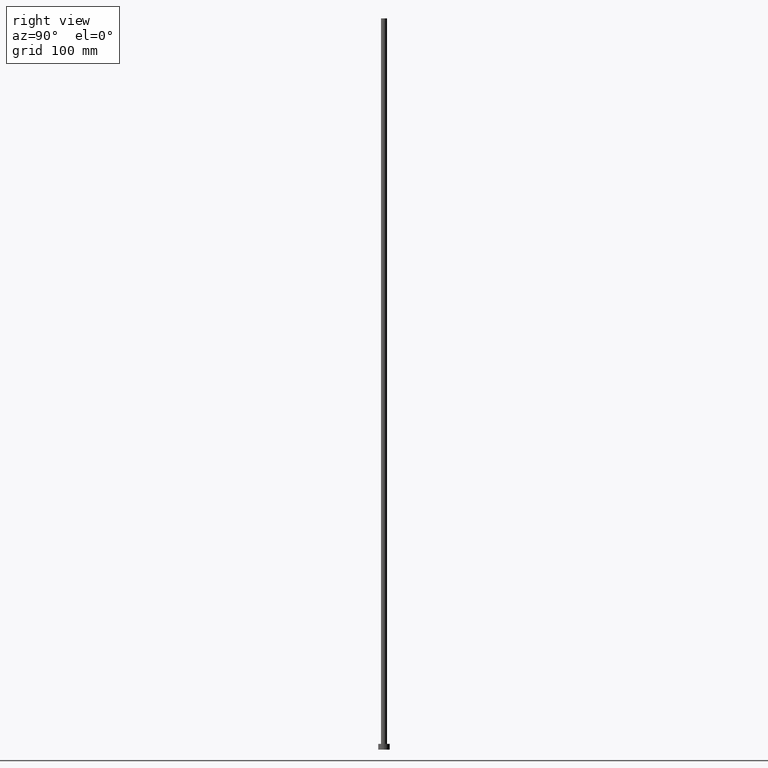
[diagram: clean part render]
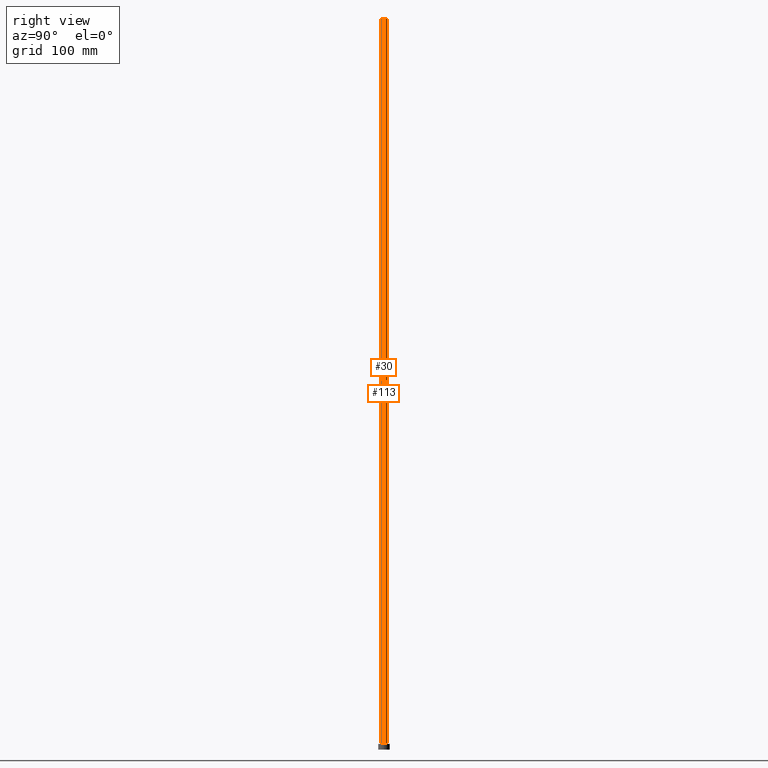
[diagram: same view with one multi-face feature highlighted, each face labeled with its STEP entity id]
A machine part, right view. The highlighted faces form ONE feature: a constant-radius fillet chain: 2 tangent blend faces with common blend radius 2.6 mm. The faces share edges in the B-rep.
Their STEP definitions:
[1] entity #30 (Cylinder):
#2 = LINE ( 'NONE', #75, #248 ) ;
#11 = CIRCLE ( 'NONE', #57, 2.600000000000000089 ) ;
#13 = DIRECTION ( 'NONE',  ( -0.000000000000000000, -0.000000000000000000, -1.000000000000000000 ) ) ;
#23 = CARTESIAN_POINT ( 'NONE',  ( 2.600000000000000089, 3.184081677783118191E-16, 630.0000000000000000 ) ) ;
#25 = LINE ( 'NONE', #47, #193 ) ;
#26 = VERTEX_POINT ( 'NONE', #139 ) ;
#30 = ADVANCED_FACE ( 'NONE', ( #214 ), #197, .T. ) ;
#35 = DIRECTION ( 'NONE',  ( -1.000000000000000000, 0.000000000000000000, 0.000000000000000000 ) ) ;
#36 = DIRECTION ( 'NONE',  ( -0.000000000000000000, -0.000000000000000000, -1.000000000000000000 ) ) ;
#38 = EDGE_CURVE ( 'NONE', #217, #213, #157, .T. ) ;
#43 = CARTESIAN_POINT ( 'NONE',  ( 0.000000000000000000, 0.000000000000000000, 5.000000000000000000 ) ) ;
#47 = CARTESIAN_POINT ( 'NONE',  ( -2.600000000000000089, 0.000000000000000000, 630.0000000000000000 ) ) ;
#57 = AXIS2_PLACEMENT_3D ( 'NONE', #43, #108, #236 ) ;
#58 = CARTESIAN_POINT ( 'NONE',  ( 0.000000000000000000, 0.000000000000000000, 630.0000000000000000 ) ) ;
#75 = CARTESIAN_POINT ( 'NONE',  ( 2.600000000000000089, 3.184081677783118191E-16, 630.0000000000000000 ) ) ;
#76 = AXIS2_PLACEMENT_3D ( 'NONE', #58, #160, #118 ) ;
#88 = DIRECTION ( 'NONE',  ( -0.000000000000000000, -0.000000000000000000, -1.000000000000000000 ) ) ;
#93 = EDGE_LOOP ( 'NONE', ( #216, #119, #173, #114 ) ) ;
#108 = DIRECTION ( 'NONE',  ( 0.000000000000000000, 0.000000000000000000, 1.000000000000000000 ) ) ;
#114 = ORIENTED_EDGE ( 'NONE', *, *, #240, .T. ) ;
#118 = DIRECTION ( 'NONE',  ( 1.000000000000000000, 0.000000000000000000, 0.000000000000000000 ) ) ;
#119 = ORIENTED_EDGE ( 'NONE', *, *, #38, .F. ) ;
#137 = EDGE_CURVE ( 'NONE', #213, #26, #2, .T. ) ;
#139 = CARTESIAN_POINT ( 'NONE',  ( 2.600000000000000089, 3.184081677783118191E-16, 5.000000000000000000 ) ) ;
#154 = VERTEX_POINT ( 'NONE', #215 ) ;
#157 = CIRCLE ( 'NONE', #76, 2.600000000000000089 ) ;
#160 = DIRECTION ( 'NONE',  ( 0.000000000000000000, 0.000000000000000000, 1.000000000000000000 ) ) ;
#169 = EDGE_CURVE ( 'NONE', #217, #154, #25, .T. ) ;
#173 = ORIENTED_EDGE ( 'NONE', *, *, #169, .T. ) ;
#193 = VECTOR ( 'NONE', #88, 1000.000000000000000 ) ;
#197 = CYLINDRICAL_SURFACE ( 'NONE', #223, 2.600000000000000089 ) ;
#208 = CARTESIAN_POINT ( 'NONE',  ( -2.600000000000000089, 0.000000000000000000, 630.0000000000000000 ) ) ;
#213 = VERTEX_POINT ( 'NONE', #23 ) ;
#214 = FACE_OUTER_BOUND ( 'NONE', #93, .T. ) ;
#215 = CARTESIAN_POINT ( 'NONE',  ( -2.600000000000000089, 0.000000000000000000, 5.000000000000000000 ) ) ;
#216 = ORIENTED_EDGE ( 'NONE', *, *, #137, .F. ) ;
#217 = VERTEX_POINT ( 'NONE', #208 ) ;
#223 = AXIS2_PLACEMENT_3D ( 'NONE', #228, #13, #35 ) ;
#228 = CARTESIAN_POINT ( 'NONE',  ( 0.000000000000000000, 0.000000000000000000, 630.0000000000000000 ) ) ;
#236 = DIRECTION ( 'NONE',  ( 1.000000000000000000, 0.000000000000000000, 0.000000000000000000 ) ) ;
#240 = EDGE_CURVE ( 'NONE', #154, #26, #11, .T. ) ;
#248 = VECTOR ( 'NONE', #36, 1000.000000000000000 ) ;
[2] entity #113 (Cylinder):
#2 = LINE ( 'NONE', #75, #248 ) ;
#7 = AXIS2_PLACEMENT_3D ( 'NONE', #233, #158, #32 ) ;
#8 = DIRECTION ( 'NONE',  ( 0.000000000000000000, 0.000000000000000000, 1.000000000000000000 ) ) ;
#9 = EDGE_CURVE ( 'NONE', #26, #154, #227, .T. ) ;
#23 = CARTESIAN_POINT ( 'NONE',  ( 2.600000000000000089, 3.184081677783118191E-16, 630.0000000000000000 ) ) ;
#25 = LINE ( 'NONE', #47, #193 ) ;
#26 = VERTEX_POINT ( 'NONE', #139 ) ;
#32 = DIRECTION ( 'NONE',  ( 1.000000000000000000, 0.000000000000000000, 0.000000000000000000 ) ) ;
#36 = DIRECTION ( 'NONE',  ( -0.000000000000000000, -0.000000000000000000, -1.000000000000000000 ) ) ;
#47 = CARTESIAN_POINT ( 'NONE',  ( -2.600000000000000089, 0.000000000000000000, 630.0000000000000000 ) ) ;
#55 = ORIENTED_EDGE ( 'NONE', *, *, #9, .T. ) ;
#67 = EDGE_LOOP ( 'NONE', ( #176, #107, #55, #247 ) ) ;
#75 = CARTESIAN_POINT ( 'NONE',  ( 2.600000000000000089, 3.184081677783118191E-16, 630.0000000000000000 ) ) ;
#79 = AXIS2_PLACEMENT_3D ( 'NONE', #101, #255, #250 ) ;
#83 = CARTESIAN_POINT ( 'NONE',  ( 0.000000000000000000, 0.000000000000000000, 630.0000000000000000 ) ) ;
#87 = AXIS2_PLACEMENT_3D ( 'NONE', #83, #8, #206 ) ;
#88 = DIRECTION ( 'NONE',  ( -0.000000000000000000, -0.000000000000000000, -1.000000000000000000 ) ) ;
#101 = CARTESIAN_POINT ( 'NONE',  ( 0.000000000000000000, 0.000000000000000000, 630.0000000000000000 ) ) ;
#107 = ORIENTED_EDGE ( 'NONE', *, *, #137, .T. ) ;
#113 = ADVANCED_FACE ( 'NONE', ( #178 ), #219, .T. ) ;
#135 = CIRCLE ( 'NONE', #87, 2.600000000000000089 ) ;
#137 = EDGE_CURVE ( 'NONE', #213, #26, #2, .T. ) ;
#139 = CARTESIAN_POINT ( 'NONE',  ( 2.600000000000000089, 3.184081677783118191E-16, 5.000000000000000000 ) ) ;
#154 = VERTEX_POINT ( 'NONE', #215 ) ;
#158 = DIRECTION ( 'NONE',  ( 0.000000000000000000, 0.000000000000000000, 1.000000000000000000 ) ) ;
#169 = EDGE_CURVE ( 'NONE', #217, #154, #25, .T. ) ;
#176 = ORIENTED_EDGE ( 'NONE', *, *, #189, .F. ) ;
#178 = FACE_OUTER_BOUND ( 'NONE', #67, .T. ) ;
#189 = EDGE_CURVE ( 'NONE', #213, #217, #135, .T. ) ;
#193 = VECTOR ( 'NONE', #88, 1000.000000000000000 ) ;
#206 = DIRECTION ( 'NONE',  ( 1.000000000000000000, 0.000000000000000000, 0.000000000000000000 ) ) ;
#208 = CARTESIAN_POINT ( 'NONE',  ( -2.600000000000000089, 0.000000000000000000, 630.0000000000000000 ) ) ;
#213 = VERTEX_POINT ( 'NONE', #23 ) ;
#215 = CARTESIAN_POINT ( 'NONE',  ( -2.600000000000000089, 0.000000000000000000, 5.000000000000000000 ) ) ;
#217 = VERTEX_POINT ( 'NONE', #208 ) ;
#219 = CYLINDRICAL_SURFACE ( 'NONE', #79, 2.600000000000000089 ) ;
#227 = CIRCLE ( 'NONE', #7, 2.600000000000000089 ) ;
#233 = CARTESIAN_POINT ( 'NONE',  ( 0.000000000000000000, 0.000000000000000000, 5.000000000000000000 ) ) ;
#247 = ORIENTED_EDGE ( 'NONE', *, *, #169, .F. ) ;
#248 = VECTOR ( 'NONE', #36, 1000.000000000000000 ) ;
#250 = DIRECTION ( 'NONE',  ( -1.000000000000000000, 0.000000000000000000, 0.000000000000000000 ) ) ;
#255 = DIRECTION ( 'NONE',  ( -0.000000000000000000, -0.000000000000000000, -1.000000000000000000 ) ) ;